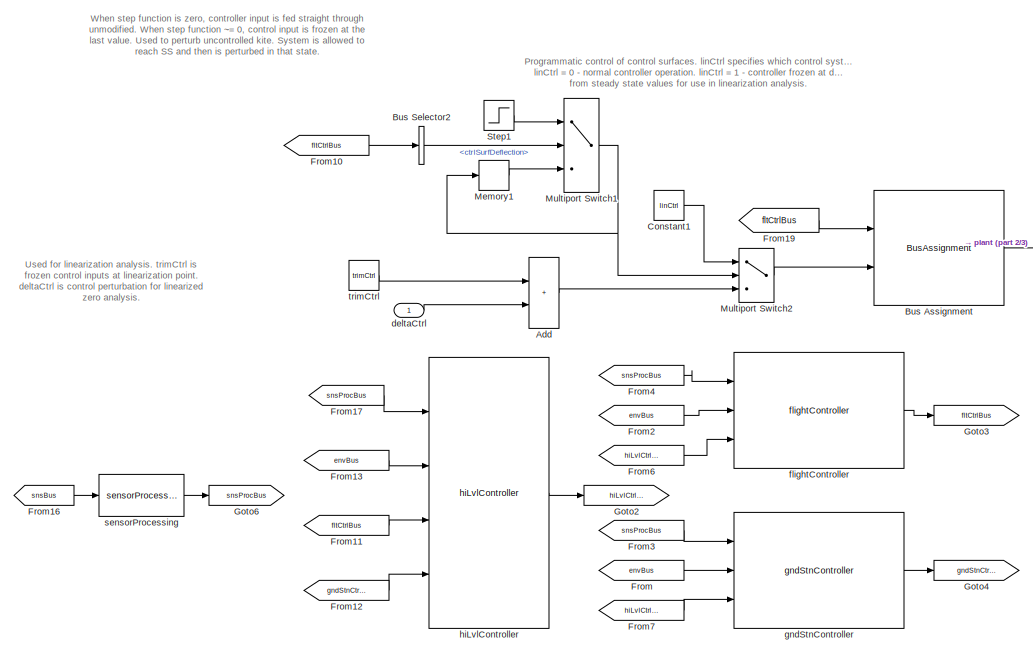
[diagram: root canvas - part 1/3, middle left region]
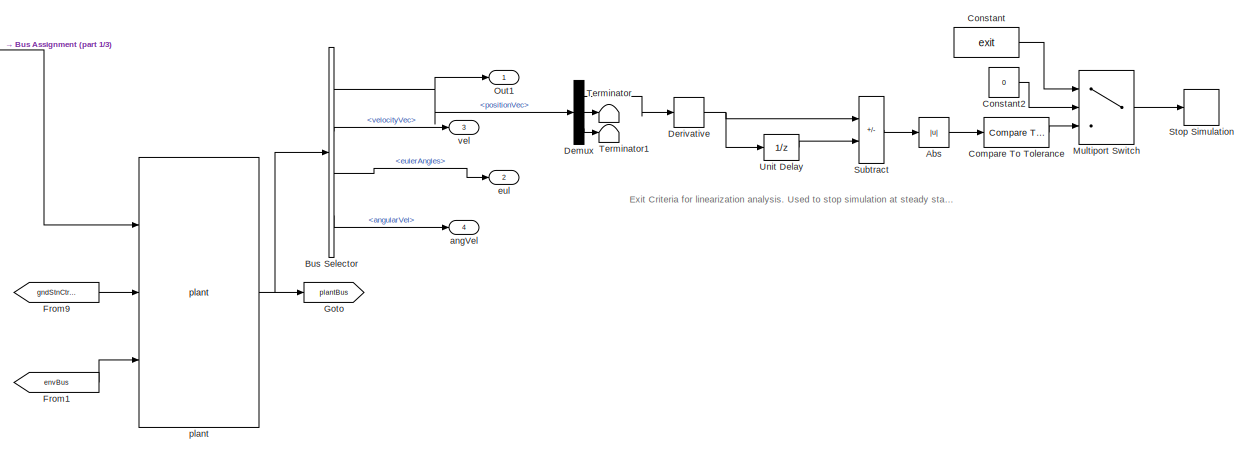
[diagram: root canvas - part 2/3, middle right region]
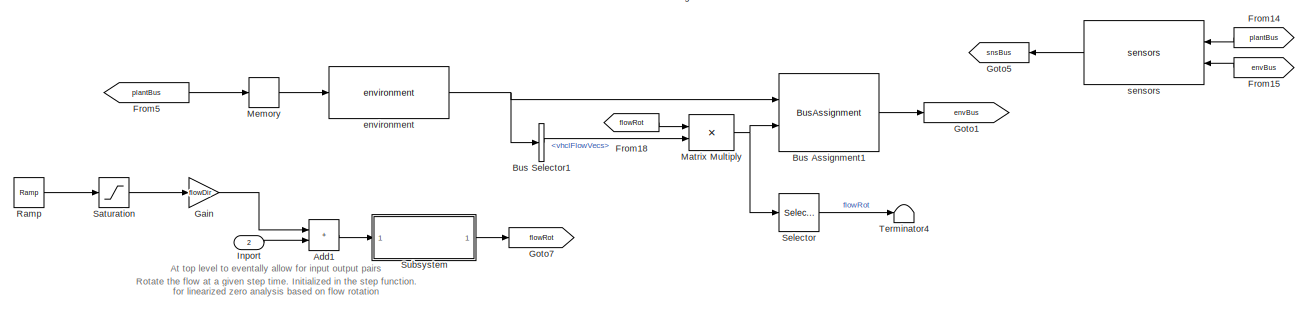
[diagram: root canvas - part 3/3, bottom left region]
MODEL slx_44275397a5dc
KIND model
CONFIG AbsTol = auto
CONFIG EnableMultiTasking = off
CONFIG FixedStep = auto
CONFIG MaxStep = auto
CONFIG MinStep = auto
CONFIG RelTol = 1e-3
CONFIG SampleTimeConstraint = Unconstrained
CONFIG SolverName = ode15s
CONFIG StartTime = 0.0
CONFIG StopTime = duration_s
BLOCK [Abs] Abs
  SaturateOnIntegerOverflow = off
  ZeroCross = off
BLOCK [Sum] Add
  IconShape = rectangular
  Ports = [2, 1]
BLOCK [Sum] Add1
  IconShape = rectangular
  Ports = [2, 1]
BLOCK [BusAssignment] Bus Assignment
  AssignedSignals = ctrlSurfDeflection
  Ports = [2, 1]
BLOCK [BusAssignment] Bus Assignment1
  AssignedSignals = vhclFlowVecs
  Ports = [2, 1]
BLOCK [BusSelector] Bus Selector
  OutputSignals = positionVec,velocityVec,eulerAngles,angularVel
  Ports = [1, 4]
BLOCK [BusSelector] Bus Selector1
  OutputSignals = vhclFlowVecs
  Ports = [1, 1]
BLOCK [BusSelector] Bus Selector2
  OutputSignals = ctrlSurfDeflection
  Ports = [1, 1]
BLOCK [Reference] Compare To Tolerance  REF=simulink/Logic and Bit
Operations/Compare
To Constant
  Ports = [1, 1]
  SourceBlock = simulink/Logic and Bit\nOperations/Compare\nTo Constant
  SourceProductBaseCode = SL
  SourceType = Compare To Constant
BLOCK [Constant] Constant
  Value = exit
BLOCK [Constant] Constant1
  Value = linCtrl
BLOCK [Constant] Constant2
  Value = 0
BLOCK [Demux] Demux
  Outputs = 3
  Ports = [1, 3]
BLOCK [Derivative] Derivative
BLOCK [From] From
  GotoTag = envBus
BLOCK [From] From1
  GotoTag = envBus
BLOCK [From] From10
  GotoTag = fltCtrlBus
BLOCK [From] From11
  GotoTag = fltCtrlBus
BLOCK [From] From12
  GotoTag = gndStnCtrlBus
BLOCK [From] From13
  GotoTag = envBus
BLOCK [From] From14
  GotoTag = plantBus
BLOCK [From] From15
  GotoTag = envBus
BLOCK [From] From16
  GotoTag = snsBus
BLOCK [From] From17
  GotoTag = snsProcBus
BLOCK [From] From18
  GotoTag = flowRot
BLOCK [From] From19
  GotoTag = fltCtrlBus
BLOCK [From] From2
  GotoTag = envBus
BLOCK [From] From3
  GotoTag = snsProcBus
BLOCK [From] From4
  GotoTag = snsProcBus
BLOCK [From] From5
  GotoTag = plantBus
BLOCK [From] From6
  GotoTag = hiLvlCtrlBus
BLOCK [From] From7
  GotoTag = hiLvlCtrlBus
BLOCK [From] From9
  GotoTag = gndStnCtrlBus
BLOCK [Gain] Gain
  Gain = flowDir
BLOCK [Goto] Goto
  GotoTag = plantBus
BLOCK [Goto] Goto1
  GotoTag = envBus
BLOCK [Goto] Goto2
  GotoTag = hiLvlCtrlBus
BLOCK [Goto] Goto3
  GotoTag = fltCtrlBus
BLOCK [Goto] Goto4
  GotoTag = gndStnCtrlBus
BLOCK [Goto] Goto5
  GotoTag = snsBus
BLOCK [Goto] Goto6
  GotoTag = snsProcBus
BLOCK [Goto] Goto7
  GotoTag = flowRot
BLOCK [Inport] Inport
  Port = 2
  PortDimensions = 1
BLOCK [Product] Matrix Multiply
  Multiplication = Matrix(*)
  Ports = [2, 1]
BLOCK [Memory] Memory
BLOCK [Memory] Memory1
  LinearizeMemory = on
BLOCK [MultiPortSwitch] Multiport Switch
  DataPortOrder = Zero-based contiguous
  InputSameDT = off
  Inputs = 2
  Ports = [3, 1]
  SaturateOnIntegerOverflow = off
  zeroidx = on
BLOCK [MultiPortSwitch] Multiport Switch1
  DataPortOrder = Zero-based contiguous
  InputSameDT = off
  Inputs = 2
  Ports = [3, 1]
  SaturateOnIntegerOverflow = off
  zeroidx = on
BLOCK [MultiPortSwitch] Multiport Switch2
  DataPortOrder = Zero-based contiguous
  InputSameDT = off
  Inputs = 2
  Ports = [3, 1]
  SaturateOnIntegerOverflow = off
  zeroidx = on
BLOCK [Outport] Out1
BLOCK [Reference] Ramp  REF=simulink/Sources/Ramp
  Ports = [0, 1]
  SourceBlock = simulink/Sources/Ramp
  SourceProductBaseCode = SL
  SourceType = Ramp
BLOCK [Saturate] Saturation
  LowerLimit = 0
  UpperLimit = 1
BLOCK [Selector] Selector
  IndexOptions = Select all,Index vector (dialog)
  Indices = [1 3],5
  InputPortWidth = 3
  NumberOfDimensions = 2
  OutputSizes = 1,1
  Ports = [1, 1]
BLOCK [Step] Step1
  After = ctrlFreeze
  SampleTime = 0
  Time = ctrlFreezeTime
BLOCK [Stop] Stop Simulation
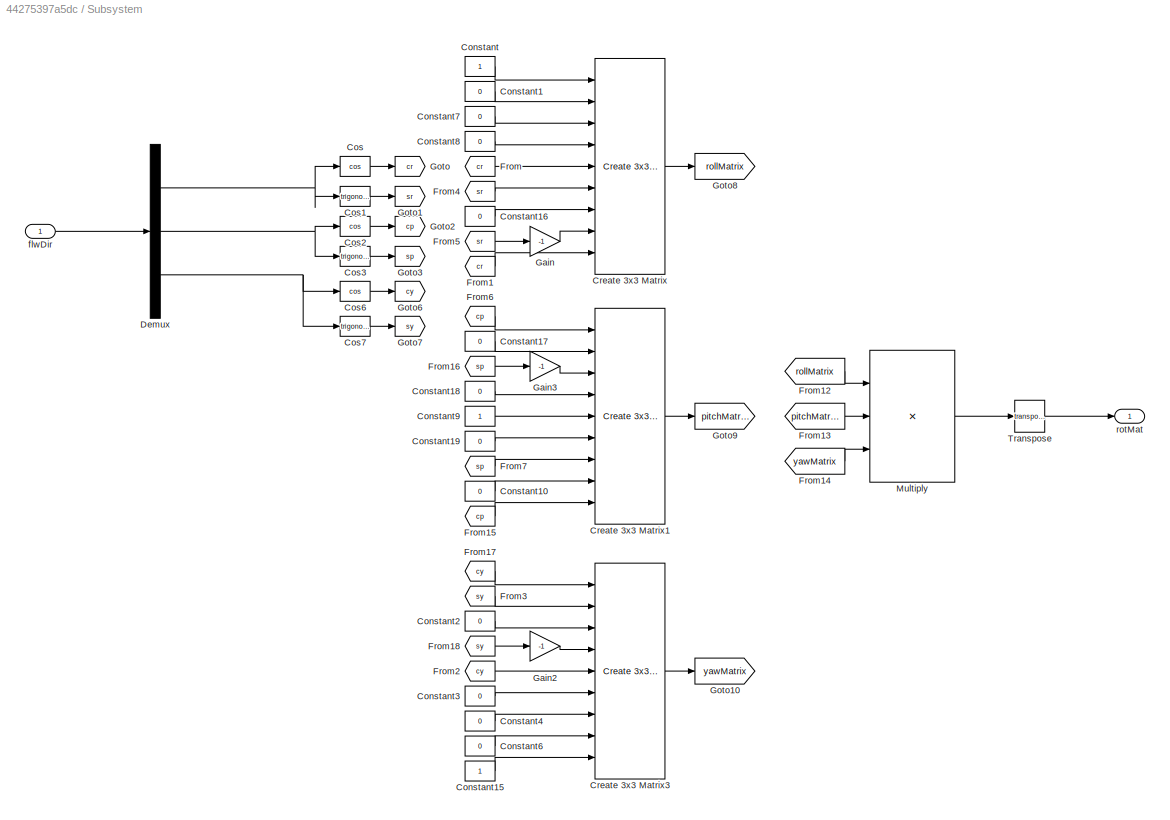
BLOCK [SubSystem] Subsystem
  Ports = [1, 1]
  RequestExecContextInheritance = off
BLOCK [Constant] Subsystem/Constant
BLOCK [Constant] Subsystem/Constant1
  Value = 0
BLOCK [Constant] Subsystem/Constant10
  Value = 0
BLOCK [Constant] Subsystem/Constant15
BLOCK [Constant] Subsystem/Constant16
  Value = 0
BLOCK [Constant] Subsystem/Constant17
  Value = 0
BLOCK [Constant] Subsystem/Constant18
  Value = 0
BLOCK [Constant] Subsystem/Constant19
  Value = 0
BLOCK [Constant] Subsystem/Constant2
  Value = 0
BLOCK [Constant] Subsystem/Constant3
  Value = 0
BLOCK [Constant] Subsystem/Constant4
  Value = 0
BLOCK [Constant] Subsystem/Constant6
  Value = 0
BLOCK [Constant] Subsystem/Constant7
  Value = 0
BLOCK [Constant] Subsystem/Constant8
  Value = 0
BLOCK [Constant] Subsystem/Constant9
BLOCK [Trigonometry] Subsystem/Cos
  Operator = cos
  Ports = [1, 1]
BLOCK [Trigonometry] Subsystem/Cos1
  Ports = [1, 1]
BLOCK [Trigonometry] Subsystem/Cos2
  Operator = cos
  Ports = [1, 1]
BLOCK [Trigonometry] Subsystem/Cos3
  Ports = [1, 1]
BLOCK [Trigonometry] Subsystem/Cos6
  Operator = cos
  Ports = [1, 1]
BLOCK [Trigonometry] Subsystem/Cos7
  Ports = [1, 1]
BLOCK [Reference] Subsystem/Create 3x3 Matrix  REF=sharedutil/Create 3x3 Matrix
  Ports = [9, 1]
  SourceBlock = sharedutil/Create 3x3 Matrix
  SourceProductBaseCode = AE,PW,DR,MT,VE
  SourceType = Create 3x3 Matrix
BLOCK [Reference] Subsystem/Create 3x3 Matrix1  REF=sharedutil/Create 3x3 Matrix
  Ports = [9, 1]
  SourceBlock = sharedutil/Create 3x3 Matrix
  SourceProductBaseCode = AE,PW,DR,MT,VE
  SourceType = Create 3x3 Matrix
BLOCK [Reference] Subsystem/Create 3x3 Matrix3  REF=sharedutil/Create 3x3 Matrix
  Ports = [9, 1]
  SourceBlock = sharedutil/Create 3x3 Matrix
  SourceProductBaseCode = AE,PW,DR,MT,VE
  SourceType = Create 3x3 Matrix
BLOCK [Demux] Subsystem/Demux
  Outputs = 3
  Ports = [1, 3]
BLOCK [From] Subsystem/From
  GotoTag = cr
BLOCK [From] Subsystem/From1
  GotoTag = cr
BLOCK [From] Subsystem/From12
  GotoTag = rollMatrix
BLOCK [From] Subsystem/From13
  GotoTag = pitchMatrix
BLOCK [From] Subsystem/From14
  GotoTag = yawMatrix
BLOCK [From] Subsystem/From15
  GotoTag = cp
BLOCK [From] Subsystem/From16
  GotoTag = sp
BLOCK [From] Subsystem/From17
  GotoTag = cy
BLOCK [From] Subsystem/From18
  GotoTag = sy
BLOCK [From] Subsystem/From2
  GotoTag = cy
BLOCK [From] Subsystem/From3
  GotoTag = sy
BLOCK [From] Subsystem/From4
  GotoTag = sr
BLOCK [From] Subsystem/From5
  GotoTag = sr
BLOCK [From] Subsystem/From6
  GotoTag = cp
BLOCK [From] Subsystem/From7
  GotoTag = sp
BLOCK [Gain] Subsystem/Gain
  Gain = -1
BLOCK [Gain] Subsystem/Gain2
  Gain = -1
BLOCK [Gain] Subsystem/Gain3
  Gain = -1
BLOCK [Goto] Subsystem/Goto
  GotoTag = cr
BLOCK [Goto] Subsystem/Goto1
  GotoTag = sr
BLOCK [Goto] Subsystem/Goto10
  GotoTag = yawMatrix
BLOCK [Goto] Subsystem/Goto2
  GotoTag = cp
BLOCK [Goto] Subsystem/Goto3
  GotoTag = sp
BLOCK [Goto] Subsystem/Goto6
  GotoTag = cy
BLOCK [Goto] Subsystem/Goto7
  GotoTag = sy
BLOCK [Goto] Subsystem/Goto8
  GotoTag = rollMatrix
BLOCK [Goto] Subsystem/Goto9
  GotoTag = pitchMatrix
BLOCK [Product] Subsystem/Multiply
  Inputs = 3
  Multiplication = Matrix(*)
  Ports = [3, 1]
BLOCK [Math] Subsystem/Transpose
  Operator = transpose
  Ports = [1, 1]
BLOCK [Inport] Subsystem/flwDir
BLOCK [Outport] Subsystem/rotMat
BLOCK [Sum] Subtract
  IconShape = rectangular
  Inputs = +-
  Ports = [2, 1]
BLOCK [Terminator] Terminator
BLOCK [Terminator] Terminator1
BLOCK [Terminator] Terminator4
BLOCK [UnitDelay] Unit Delay
  InitialCondition = 0.1
  SampleTime = -1
BLOCK [Outport] angVel
  Port = 4
BLOCK [Inport] deltaCtrl
  PortDimensions = 4
BLOCK [Reference] environment  REF=environment_cl/environment  (lib defined in slx_47dae840ee41)
  Ports = [1, 1]
  SourceBlock = environment_cl/environment
  SourceType = SubSystem
BLOCK [Outport] eul
  Port = 2
BLOCK [Reference] flightController  REF=flightController_cl/flightController
  Ports = [3, 1]
  SourceBlock = flightController_cl/flightController
  SourceType = SubSystem
BLOCK [Reference] gndStnController  REF=gndStnController_cl/gndStnController
  Ports = [3, 1]
  SourceBlock = gndStnController_cl/gndStnController
  SourceType = SubSystem
BLOCK [Reference] hiLvlController  REF=hiLvlController_cl/hiLvlController
  Ports = [4, 1]
  SourceBlock = hiLvlController_cl/hiLvlController
  SourceType = SubSystem
BLOCK [Reference] plant  REF=plant_cl/plant  (lib defined in slx_16586b0fd0ad)
  Ports = [3, 1]
  SourceBlock = plant_cl/plant
  SourceType = SubSystem
BLOCK [Reference] sensorProcessing  REF=sensorProcessing_cl/sensorProcessing
  Ports = [1, 1]
  SourceBlock = sensorProcessing_cl/sensorProcessing
  SourceType = SubSystem
BLOCK [Reference] sensors  REF=sensors_cl/sensors
  Ports = [2, 1]
  SourceBlock = sensors_cl/sensors
  SourceType = SubSystem
BLOCK [Constant] trimCtrl
  Value = trimCtrl
BLOCK [Outport] vel
  Port = 3
ANNOTATION (root): Exit Criteria for linearization analysis. Used to stop simulation at steady state.
ANNOTATION (root): Programmatic control of control surfaces. linCtrl specifies which control system is used. linCtrl = 0 - normal controller operation. linCtrl = 1 - controller frozen at deflections picked off from steady state values for use in linearization analysis.
ANNOTATION (root): Rotate the flow at a given step time. Initialized in the step function. At top level to eventally allow for input output pairs for linearized zero analysis based on flow rotation
ANNOTATION (root): Used for linearization analysis. trimCtrl is frozen control inputs at linearization point. deltaCtrl is control perturbation for linearized zero analysis.
ANNOTATION (root): When step function is zero, controller input is fed straight through unmodified. When step function ~= 0, control input is frozen at the last value. Used to perturb uncontrolled kite. System is allowed to reach SS and then is perturbed in that state.
LINE Abs:1 -> Compare To Tolerance:1
LINE Add1:1 -> Subsystem:1
LINE Add:1 -> Multiport Switch2:3
LINE Bus Assignment1:1 -> Goto1:1
LINE Bus Assignment:1 -> plant:1
LINE Bus Selector1:1 -> Matrix Multiply:2
LINE Bus Selector2:1 -> Multiport Switch1:2
NET Bus Selector:1 -> Demux:1, Out1:1
LINE Bus Selector:2 -> vel:1
LINE Bus Selector:3 -> eul:1
LINE Bus Selector:4 -> angVel:1
LINE Compare To Tolerance:1 -> Multiport Switch:3
LINE Constant1:1 -> Multiport Switch2:1
LINE Constant2:1 -> Multiport Switch:2
LINE Constant:1 -> Multiport Switch:1
LINE Demux:1 -> Derivative:1
LINE Demux:2 -> Terminator:1
LINE Demux:3 -> Terminator1:1
NET Derivative:1 -> Subtract:1, Unit Delay:1
LINE From10:1 -> Bus Selector2:1
LINE From11:1 -> hiLvlController:3
LINE From12:1 -> hiLvlController:4
LINE From13:1 -> hiLvlController:2
LINE From14:1 -> sensors:1
LINE From15:1 -> sensors:2
LINE From16:1 -> sensorProcessing:1
LINE From17:1 -> hiLvlController:1
LINE From18:1 -> Matrix Multiply:1
LINE From19:1 -> Bus Assignment:1
LINE From1:1 -> plant:3
LINE From2:1 -> flightController:2
LINE From3:1 -> gndStnController:1
LINE From4:1 -> flightController:1
LINE From5:1 -> Memory:1
LINE From6:1 -> flightController:3
LINE From7:1 -> gndStnController:3
LINE From9:1 -> plant:2
LINE From:1 -> gndStnController:2
LINE Gain:1 -> Add1:1
LINE Inport:1 -> Add1:2
NET Matrix Multiply:1 -> Bus Assignment1:2, Selector:1
LINE Memory1:1 -> Multiport Switch1:3
LINE Memory:1 -> environment:1
NET Multiport Switch1:1 -> Memory1:1, Multiport Switch2:2
LINE Multiport Switch2:1 -> Bus Assignment:2
LINE Multiport Switch:1 -> Stop Simulation:1
LINE Ramp:1 -> Saturation:1
LINE Saturation:1 -> Gain:1
LINE Selector:1 -> Terminator4:1
LINE Step1:1 -> Multiport Switch1:1
LINE Subsystem/Constant10:1 -> Subsystem/Create 3x3 Matrix1:8
LINE Subsystem/Constant15:1 -> Subsystem/Create 3x3 Matrix3:9
LINE Subsystem/Constant16:1 -> Subsystem/Create 3x3 Matrix:7
LINE Subsystem/Constant17:1 -> Subsystem/Create 3x3 Matrix1:2
LINE Subsystem/Constant18:1 -> Subsystem/Create 3x3 Matrix1:4
LINE Subsystem/Constant19:1 -> Subsystem/Create 3x3 Matrix1:6
LINE Subsystem/Constant1:1 -> Subsystem/Create 3x3 Matrix:2
LINE Subsystem/Constant2:1 -> Subsystem/Create 3x3 Matrix3:3
LINE Subsystem/Constant3:1 -> Subsystem/Create 3x3 Matrix3:6
LINE Subsystem/Constant4:1 -> Subsystem/Create 3x3 Matrix3:7
LINE Subsystem/Constant6:1 -> Subsystem/Create 3x3 Matrix3:8
LINE Subsystem/Constant7:1 -> Subsystem/Create 3x3 Matrix:3
LINE Subsystem/Constant8:1 -> Subsystem/Create 3x3 Matrix:4
LINE Subsystem/Constant9:1 -> Subsystem/Create 3x3 Matrix1:5
LINE Subsystem/Constant:1 -> Subsystem/Create 3x3 Matrix:1
LINE Subsystem/Cos1:1 -> Subsystem/Goto1:1
LINE Subsystem/Cos2:1 -> Subsystem/Goto2:1
LINE Subsystem/Cos3:1 -> Subsystem/Goto3:1
LINE Subsystem/Cos6:1 -> Subsystem/Goto6:1
LINE Subsystem/Cos7:1 -> Subsystem/Goto7:1
LINE Subsystem/Cos:1 -> Subsystem/Goto:1
LINE Subsystem/Create 3x3 Matrix1:1 -> Subsystem/Goto9:1
LINE Subsystem/Create 3x3 Matrix3:1 -> Subsystem/Goto10:1
LINE Subsystem/Create 3x3 Matrix:1 -> Subsystem/Goto8:1
NET Subsystem/Demux:1 -> Subsystem/Cos1:1, Subsystem/Cos:1
NET Subsystem/Demux:2 -> Subsystem/Cos2:1, Subsystem/Cos3:1
NET Subsystem/Demux:3 -> Subsystem/Cos6:1, Subsystem/Cos7:1
LINE Subsystem/From12:1 -> Subsystem/Multiply:1
LINE Subsystem/From13:1 -> Subsystem/Multiply:2
LINE Subsystem/From14:1 -> Subsystem/Multiply:3
LINE Subsystem/From15:1 -> Subsystem/Create 3x3 Matrix1:9
LINE Subsystem/From16:1 -> Subsystem/Gain3:1
LINE Subsystem/From17:1 -> Subsystem/Create 3x3 Matrix3:1
LINE Subsystem/From18:1 -> Subsystem/Gain2:1
LINE Subsystem/From1:1 -> Subsystem/Create 3x3 Matrix:9
LINE Subsystem/From2:1 -> Subsystem/Create 3x3 Matrix3:5
LINE Subsystem/From3:1 -> Subsystem/Create 3x3 Matrix3:2
LINE Subsystem/From4:1 -> Subsystem/Create 3x3 Matrix:6
LINE Subsystem/From5:1 -> Subsystem/Gain:1
LINE Subsystem/From6:1 -> Subsystem/Create 3x3 Matrix1:1
LINE Subsystem/From7:1 -> Subsystem/Create 3x3 Matrix1:7
LINE Subsystem/From:1 -> Subsystem/Create 3x3 Matrix:5
LINE Subsystem/Gain2:1 -> Subsystem/Create 3x3 Matrix3:4
LINE Subsystem/Gain3:1 -> Subsystem/Create 3x3 Matrix1:3
LINE Subsystem/Gain:1 -> Subsystem/Create 3x3 Matrix:8
LINE Subsystem/Multiply:1 -> Subsystem/Transpose:1
LINE Subsystem/Transpose:1 -> Subsystem/rotMat:1
LINE Subsystem/flwDir:1 -> Subsystem/Demux:1
LINE Subsystem:1 -> Goto7:1
LINE Subtract:1 -> Abs:1
LINE Unit Delay:1 -> Subtract:2
LINE deltaCtrl:1 -> Add:2
NET environment:1 -> Bus Assignment1:1, Bus Selector1:1
LINE flightController:1 -> Goto3:1
LINE gndStnController:1 -> Goto4:1
LINE hiLvlController:1 -> Goto2:1
NET plant:1 -> Bus Selector:1, Goto:1
LINE sensorProcessing:1 -> Goto6:1
LINE sensors:1 -> Goto5:1
LINE trimCtrl:1 -> Add:1
note: NET lines group one-source signal fan-out (src -> all destinations, sorted); 1:1 wires keep LINE
